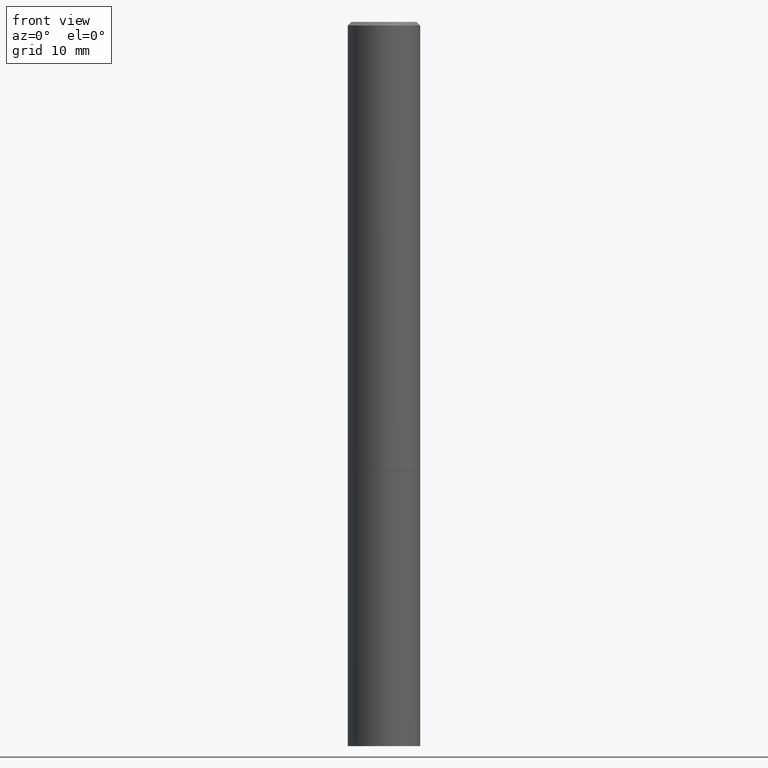
[diagram: clean part render]
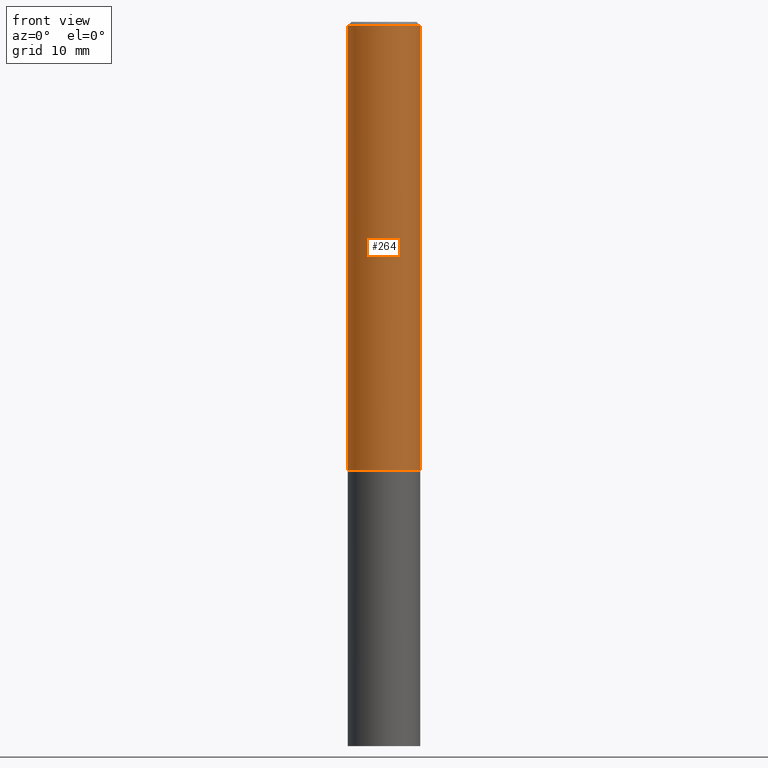
[diagram: same view with one face highlighted and labeled with its STEP entity id]
A machine part, front view. The second image highlights one B-rep face of the part: STEP entity #264.
In plain terms, the highlighted cylindrical surface (edge-blend (fillet) strip) has radius 5 mm, axis along (-0, 0, 1).
Its self-contained STEP definition (entity closure, byte-faithful):
#2 = EDGE_CURVE ( 'NONE', #66, #182, #45, .T. ) ;
#3 = CARTESIAN_POINT ( 'NONE',  ( 0.1968500000000000527, -9.893461521745931567E-15, -2.439899999999999736 ) ) ;
#6 = DIRECTION ( 'NONE',  ( 1.000000000000000000, -6.982962677686266711E-15, 0.000000000000000000 ) ) ;
#35 = CIRCLE ( 'NONE', #359, 0.1968499999999996364 ) ;
#39 = CARTESIAN_POINT ( 'NONE',  ( 5.966699340211114556E-29, -8.518865318643389958E-15, -2.439899999999999736 ) ) ;
#43 = CARTESIAN_POINT ( 'NONE',  ( -0.1968500000000000527, -2.895644097366364896E-15, -2.439899999999999736 ) ) ;
#45 = LINE ( 'NONE', #112, #238 ) ;
#66 = VERTEX_POINT ( 'NONE', #3 ) ;
#90 = FACE_OUTER_BOUND ( 'NONE', #339, .T. ) ;
#91 = DIRECTION ( 'NONE',  ( -2.445468806185136597E-29, 3.491481338843145583E-15, 1.000000000000000000 ) ) ;
#92 = CARTESIAN_POINT ( 'NONE',  ( -0.1968499999999998307, 1.398703375343756013E-15, -9.682923725166775270E-30 ) ) ;
#97 = EDGE_CURVE ( 'NONE', #363, #350, #320, .T. ) ;
#112 = CARTESIAN_POINT ( 'NONE',  ( 0.1968499999999998307, -1.374596203102540425E-15, 9.598753983154291049E-30 ) ) ;
#123 = VECTOR ( 'NONE', #167, 39.37007874015748143 ) ;
#124 = CARTESIAN_POINT ( 'NONE',  ( -0.1968499999999996364, 1.304766576325675944E-15, -0.02000000000000002123 ) ) ;
#161 = DIRECTION ( 'NONE',  ( -2.445468806185136877E-29, 3.491481338843145188E-15, 1.000000000000000000 ) ) ;
#167 = DIRECTION ( 'NONE',  ( -2.445468806185136877E-29, 3.491481338843145188E-15, 1.000000000000000000 ) ) ;
#169 = DIRECTION ( 'NONE',  ( -2.445468806185136597E-29, 3.491481338843145583E-15, 1.000000000000000000 ) ) ;
#171 = AXIS2_PLACEMENT_3D ( 'NONE', #39, #247, #236 ) ;
#182 = VERTEX_POINT ( 'NONE', #265 ) ;
#195 = CIRCLE ( 'NONE', #171, 0.1968500000000000527 ) ;
#199 = CYLINDRICAL_SURFACE ( 'NONE', #204, 0.1968499999999998307 ) ;
#201 = DIRECTION ( 'NONE',  ( 1.000000000000000000, -6.982962677686266711E-15, 4.876176775795935793E-29 ) ) ;
#204 = AXIS2_PLACEMENT_3D ( 'NONE', #315, #91, #201 ) ;
#236 = DIRECTION ( 'NONE',  ( 1.000000000000000000, -6.982962677686266711E-15, 0.000000000000000000 ) ) ;
#238 = VECTOR ( 'NONE', #161, 39.37007874015748143 ) ;
#247 = DIRECTION ( 'NONE',  ( -2.445468806185136597E-29, 3.491481338843145583E-15, 1.000000000000000000 ) ) ;
#248 = EDGE_CURVE ( 'NONE', #350, #182, #35, .T. ) ;
#259 = CARTESIAN_POINT ( 'NONE',  ( 4.890937612370278413E-31, -6.982962677686297772E-17, -0.02000000000000002123 ) ) ;
#264 = ADVANCED_FACE ( 'NONE', ( #90 ), #199, .T. ) ;
#265 = CARTESIAN_POINT ( 'NONE',  ( 0.1968499999999996364, -1.420318657638186558E-15, -0.02000000000000002123 ) ) ;
#270 = EDGE_CURVE ( 'NONE', #363, #66, #195, .T. ) ;
#273 = ORIENTED_EDGE ( 'NONE', *, *, #97, .F. ) ;
#291 = ORIENTED_EDGE ( 'NONE', *, *, #270, .T. ) ;
#307 = ORIENTED_EDGE ( 'NONE', *, *, #248, .F. ) ;
#315 = CARTESIAN_POINT ( 'NONE',  ( 0.000000000000000000, 0.000000000000000000, 0.000000000000000000 ) ) ;
#320 = LINE ( 'NONE', #92, #123 ) ;
#339 = EDGE_LOOP ( 'NONE', ( #273, #291, #352, #307 ) ) ;
#350 = VERTEX_POINT ( 'NONE', #124 ) ;
#352 = ORIENTED_EDGE ( 'NONE', *, *, #2, .T. ) ;
#359 = AXIS2_PLACEMENT_3D ( 'NONE', #259, #169, #6 ) ;
#363 = VERTEX_POINT ( 'NONE', #43 ) ;